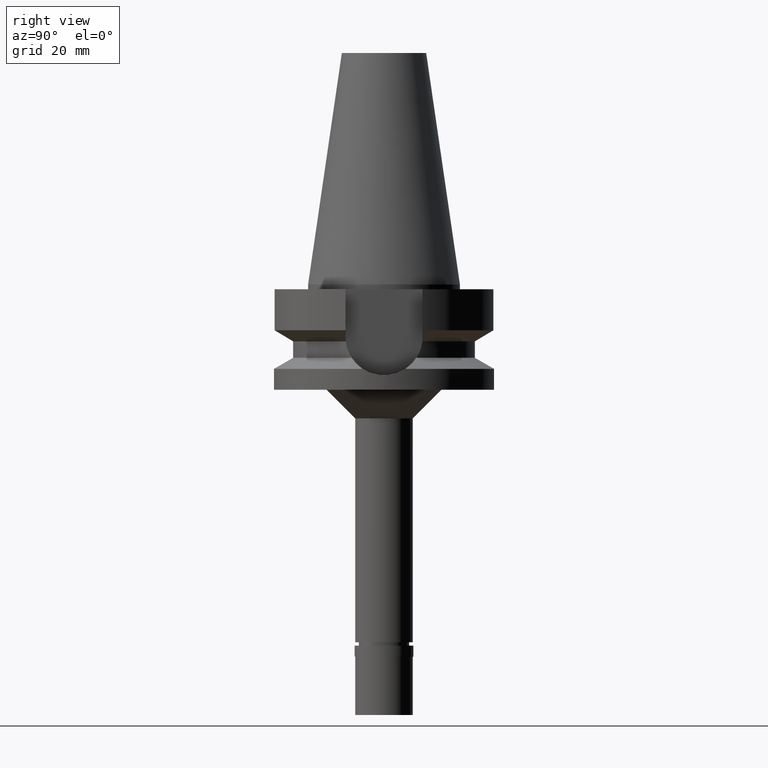
[diagram: clean part render]
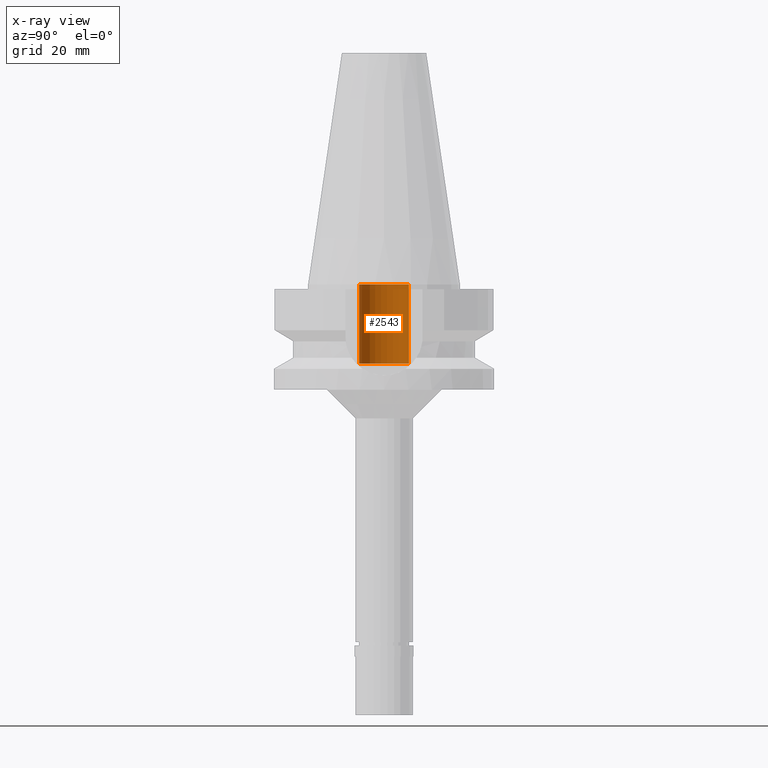
[diagram: x-ray — body ghosted, one internal face saturated and labeled with its STEP entity id]
A machine part, right view, then the same camera in x-ray: the body is ghosted and one INTERNAL B-rep face — a face not visible from any outside direction — is saturated and labeled: STEP entity #2543.
In plain terms, the highlighted cylindrical surface (edge-blend (fillet) strip) has radius 5.2 mm, axis along (0, 0, -1).
Its self-contained STEP definition (entity closure, byte-faithful):
#62 = ORIENTED_EDGE ( 'NONE', *, *, #705, .F. ) ;
#75 = VECTOR ( 'NONE', #597, 1000.000000000000000 ) ;
#93 = ORIENTED_EDGE ( 'NONE', *, *, #2592, .T. ) ;
#132 = CARTESIAN_POINT ( 'NONE',  ( 0.0000000000000000000, 1.899672114836999856E-14, 9.947598300640998705E-14 ) ) ;
#139 = CARTESIAN_POINT ( 'NONE',  ( 0.0000000000000000000, -5.200000000000000178, -16.60000000000000142 ) ) ;
#146 = VERTEX_POINT ( 'NONE', #1738 ) ;
#186 = ORIENTED_EDGE ( 'NONE', *, *, #1530, .T. ) ;
#223 = CARTESIAN_POINT ( 'NONE',  ( 0.0000000000000000000, -5.200000000000000178, -16.60000000000000142 ) ) ;
#309 = CIRCLE ( 'NONE', #2850, 5.200000000000000178 ) ;
#405 = EDGE_CURVE ( 'NONE', #2309, #146, #2293, .T. ) ;
#553 = FACE_OUTER_BOUND ( 'NONE', #1248, .T. ) ;
#597 = DIRECTION ( 'NONE',  ( 0.0000000000000000000, 0.0000000000000000000, 1.000000000000000000 ) ) ;
#619 = CARTESIAN_POINT ( 'NONE',  ( 0.0000000000000000000, 1.899672114836999856E-14, 55.12000000000000455 ) ) ;
#669 = CIRCLE ( 'NONE', #2714, 5.200000000000000178 ) ;
#705 = EDGE_CURVE ( 'NONE', #146, #2366, #309, .T. ) ;
#864 = CYLINDRICAL_SURFACE ( 'NONE', #1097, 5.200000000000000178 ) ;
#1023 = DIRECTION ( 'NONE',  ( 0.0000000000000000000, 0.0000000000000000000, -1.000000000000000000 ) ) ;
#1085 = DIRECTION ( 'NONE',  ( 0.0000000000000000000, -1.000000000000000000, 0.0000000000000000000 ) ) ;
#1097 = AXIS2_PLACEMENT_3D ( 'NONE', #619, #2116, #2773 ) ;
#1178 = ORIENTED_EDGE ( 'NONE', *, *, #405, .F. ) ;
#1208 = DIRECTION ( 'NONE',  ( 0.0000000000000000000, 0.0000000000000000000, 1.000000000000000000 ) ) ;
#1248 = EDGE_LOOP ( 'NONE', ( #62, #1178, #93, #186 ) ) ;
#1530 = EDGE_CURVE ( 'NONE', #1532, #2366, #2779, .T. ) ;
#1532 = VERTEX_POINT ( 'NONE', #2168 ) ;
#1687 = CARTESIAN_POINT ( 'NONE',  ( 0.0000000000000000000, 5.200000000000000178, -16.60000000000000142 ) ) ;
#1738 = CARTESIAN_POINT ( 'NONE',  ( 0.0000000000000000000, -5.200000000000000178, 9.237055564880999494E-14 ) ) ;
#1884 = DIRECTION ( 'NONE',  ( 0.0000000000000000000, 0.0000000000000000000, -1.000000000000000000 ) ) ;
#1916 = DIRECTION ( 'NONE',  ( 0.0000000000000000000, -1.000000000000000000, 0.0000000000000000000 ) ) ;
#2116 = DIRECTION ( 'NONE',  ( 0.0000000000000000000, 0.0000000000000000000, -1.000000000000000000 ) ) ;
#2168 = CARTESIAN_POINT ( 'NONE',  ( 0.0000000000000000000, 5.200000000000000178, -16.60000000000000142 ) ) ;
#2293 = LINE ( 'NONE', #139, #2395 ) ;
#2309 = VERTEX_POINT ( 'NONE', #223 ) ;
#2366 = VERTEX_POINT ( 'NONE', #2824 ) ;
#2395 = VECTOR ( 'NONE', #1208, 1000.000000000000000 ) ;
#2543 = ADVANCED_FACE ( 'NONE', ( #553 ), #864, .F. ) ;
#2574 = CARTESIAN_POINT ( 'NONE',  ( 0.0000000000000000000, 1.899672114836999856E-14, -16.60000000000000142 ) ) ;
#2592 = EDGE_CURVE ( 'NONE', #2309, #1532, #669, .T. ) ;
#2714 = AXIS2_PLACEMENT_3D ( 'NONE', #2574, #1884, #1085 ) ;
#2773 = DIRECTION ( 'NONE',  ( 0.0000000000000000000, -1.000000000000000000, 0.0000000000000000000 ) ) ;
#2779 = LINE ( 'NONE', #1687, #75 ) ;
#2824 = CARTESIAN_POINT ( 'NONE',  ( 0.0000000000000000000, 5.200000000000000178, 9.237055564880999494E-14 ) ) ;
#2850 = AXIS2_PLACEMENT_3D ( 'NONE', #132, #1023, #1916 ) ;